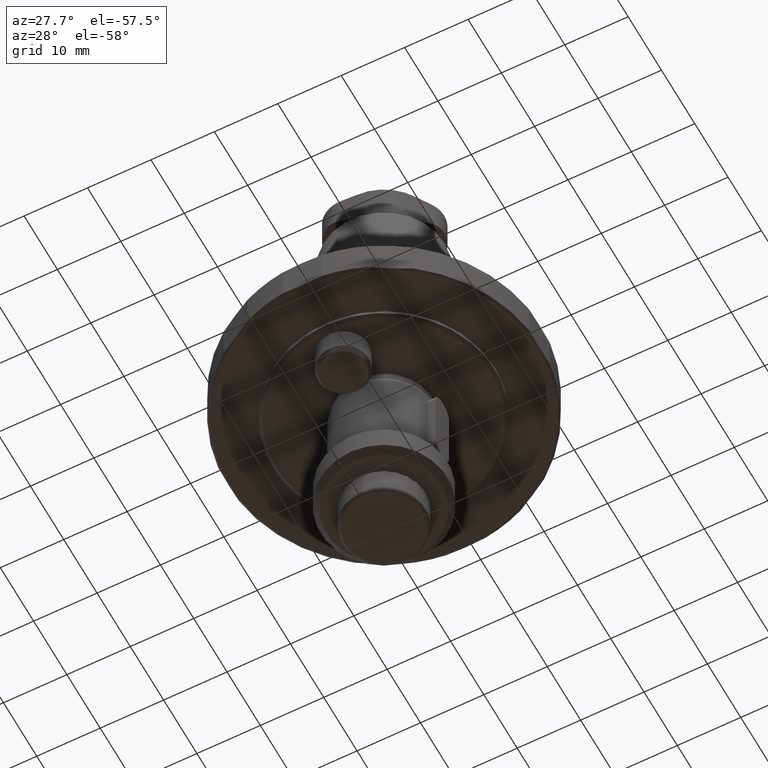
[diagram: clean part render]
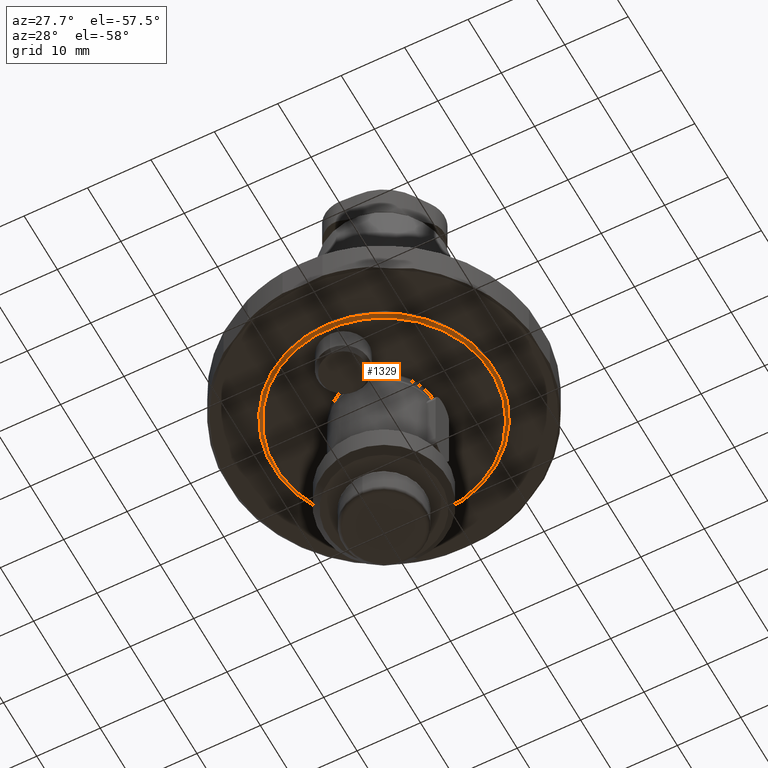
[diagram: same view with one face highlighted and labeled with its STEP entity id]
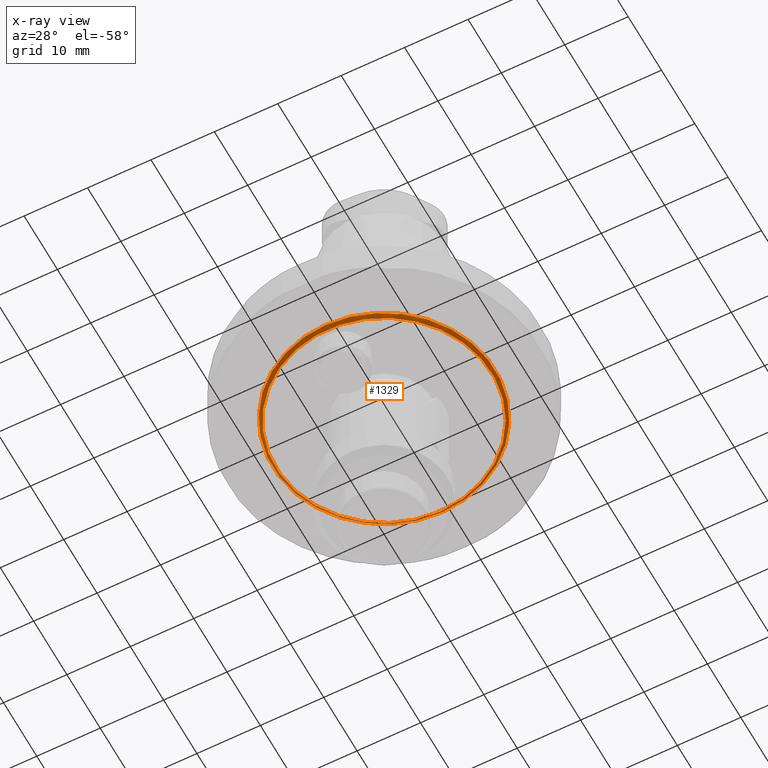
[diagram: x-ray of the same camera — body ghosted, the highlighted face saturated]
A machine part, auxiliary view. The second image highlights one B-rep face of the part: STEP entity #1329.
The next image is the same camera in x-ray: the body ghosted, the highlighted face saturated — about 8% of this face is hidden behind the body in this view.
In plain terms, the highlighted conical surface has half-angle 45 deg.
Its self-contained STEP definition (entity closure, byte-faithful):
#212=CONICAL_SURFACE('',#1441,17.,0.785398163397438);
#235=ORIENTED_EDGE('',*,*,#601,.T.);
#236=ORIENTED_EDGE('',*,*,#602,.F.);
#601=EDGE_CURVE('',#784,#784,#917,.T.);
#602=EDGE_CURVE('',#785,#785,#918,.T.);
#784=VERTEX_POINT('',#2048);
#785=VERTEX_POINT('',#2050);
#917=CIRCLE('',#1442,17.5);
#918=CIRCLE('',#1443,17.);
#1002=EDGE_LOOP('',(#235));
#1003=EDGE_LOOP('',(#236));
#1148=FACE_BOUND('',#1002,.T.);
#1149=FACE_BOUND('',#1003,.T.);
#1329=ADVANCED_FACE('',(#1148,#1149),#212,.T.);
#1441=AXIS2_PLACEMENT_3D('',#2046,#1628,#1629);
#1442=AXIS2_PLACEMENT_3D('',#2047,#1630,#1631);
#1443=AXIS2_PLACEMENT_3D('',#2049,#1632,#1633);
#1628=DIRECTION('',(5.55111512312578E-17,0.,1.));
#1629=DIRECTION('',(0.,-1.,0.));
#1630=DIRECTION('',(-5.55111512312578E-17,0.,-1.));
#1631=DIRECTION('',(0.,1.,0.));
#1632=DIRECTION('',(-5.55111512312578E-17,0.,-1.));
#1633=DIRECTION('',(0.,1.,0.));
#2046=CARTESIAN_POINT('',(-9.99200722162641E-16,0.,-8.));
#2047=CARTESIAN_POINT('',(-9.71445146547012E-16,0.,-7.5));
#2048=CARTESIAN_POINT('',(-9.71445146547012E-16,17.5,-7.5));
#2049=CARTESIAN_POINT('',(-9.99200722162641E-16,0.,-8.));
#2050=CARTESIAN_POINT('',(-9.99200722162641E-16,17.,-8.));